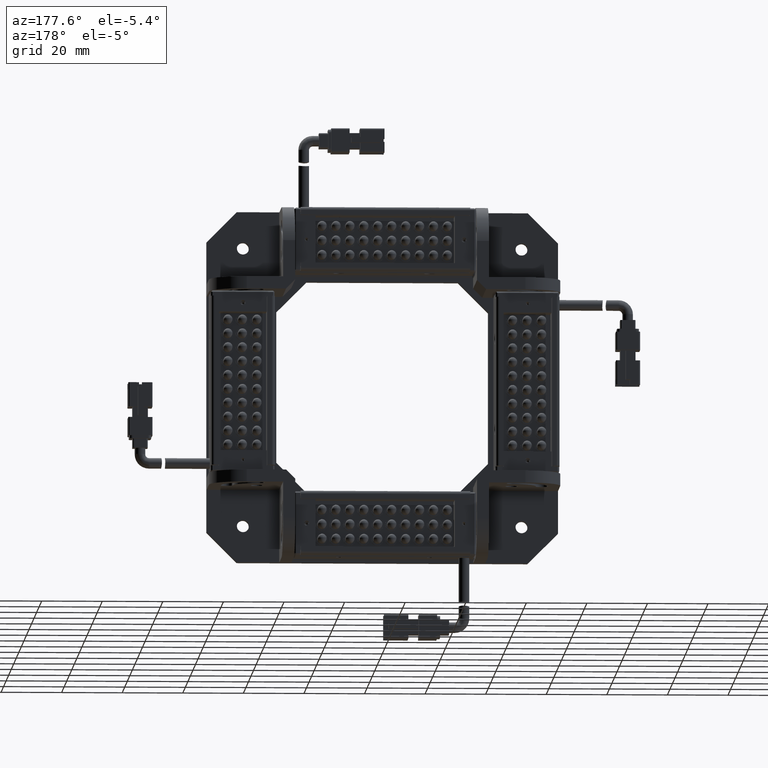
[diagram: clean part render]
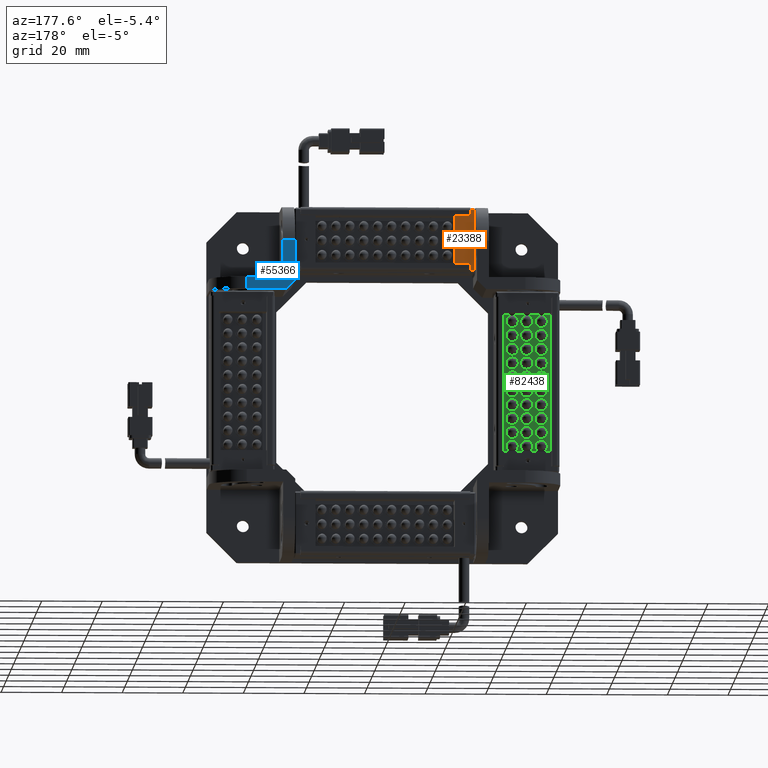
[diagram: same view with three faces highlighted in distinct colors, each labeled with its STEP entity id]
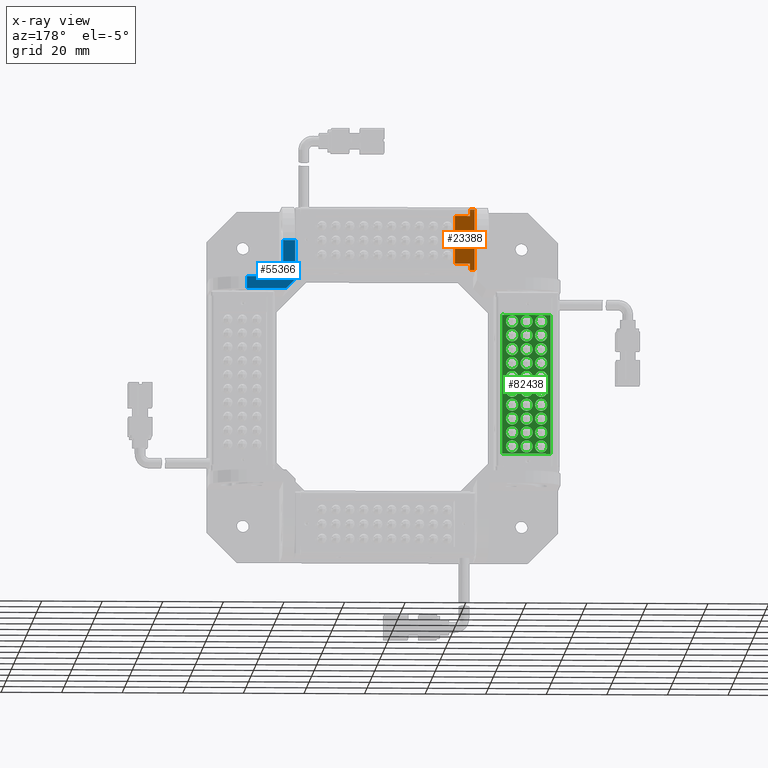
[diagram: x-ray of the same camera — body ghosted, the three highlighted faces saturated]
A machine part, auxiliary view with three faces highlighted in distinct colors.
The next image is the same camera in x-ray (body ghosted, the three faces saturated) — at least one of them is partly hidden behind the body in this view.
Their STEP definitions:

[orange] entity #23388 — the highlighted planar face has unit normal (-0, -1, -0).
#83 = CARTESIAN_POINT ( 'NONE',  ( -22.99999999999980500, 22.49999999999998200, 54.90000000000009800 ) ) ;
#1656 = EDGE_CURVE ( 'NONE', #50572, #61081, #29876, .T. ) ;
#2860 = DIRECTION ( 'NONE',  ( -1.665334536937765600E-016, -1.000000000000000000, -1.665334536937718000E-016 ) ) ;
#3181 = VERTEX_POINT ( 'NONE', #50595 ) ;
#3206 = AXIS2_PLACEMENT_3D ( 'NONE', #11047, #58519, #17892 ) ;
#4620 = VECTOR ( 'NONE', #83541, 1000.000000000000000 ) ;
#5079 = VECTOR ( 'NONE', #5892, 1000.000000000000000 ) ;
#5491 = LINE ( 'NONE', #40691, #57522 ) ;
#5892 = DIRECTION ( 'NONE',  ( 1.000000000000000000, -1.665334536937759700E-016, -3.491481338843133400E-015 ) ) ;
#6113 = CARTESIAN_POINT ( 'NONE',  ( -26.79999999999982700, 22.49999999999998600, 47.00000000000011400 ) ) ;
#6479 = CIRCLE ( 'NONE', #52557, 0.7999999999999986000 ) ;
#7579 = VERTEX_POINT ( 'NONE', #6113 ) ;
#7620 = LINE ( 'NONE', #87720, #43689 ) ;
#7853 = EDGE_CURVE ( 'NONE', #51904, #7579, #6479, .T. ) ;
#9663 = VECTOR ( 'NONE', #27386, 1000.000000000000000 ) ;
#10465 = CARTESIAN_POINT ( 'NONE',  ( -27.99999999999979700, 22.49999999999998200, 57.50000000000012100 ) ) ;
#11047 = CARTESIAN_POINT ( 'NONE',  ( -25.99999999999982900, 22.49999999999998600, 47.00000000000011400 ) ) ;
#11210 = VECTOR ( 'NONE', #24701, 1000.000000000000000 ) ;
#11688 = VERTEX_POINT ( 'NONE', #85234 ) ;
#16268 = PLANE ( 'NONE',  #49012 ) ;
#17892 = DIRECTION ( 'NONE',  ( 1.000000000000000000, 0.0000000000000000000, 0.0000000000000000000 ) ) ;
#21301 = CARTESIAN_POINT ( 'NONE',  ( -29.49999999999986100, 22.49999999999998900, 37.00000000000012800 ) ) ;
#21722 = ORIENTED_EDGE ( 'NONE', *, *, #27608, .F. ) ;
#23108 = LINE ( 'NONE', #66713, #5079 ) ;
#23388 = ADVANCED_FACE ( 'NONE', ( #43665, #59601 ), #16268, .F. ) ;
#24701 = DIRECTION ( 'NONE',  ( 3.491481338843133400E-015, -1.665334536937724000E-016, 1.000000000000000000 ) ) ;
#25575 = VERTEX_POINT ( 'NONE', #52819 ) ;
#26263 = CARTESIAN_POINT ( 'NONE',  ( -29.49999999999979400, 22.49999999999998200, 57.00000000000012800 ) ) ;
#27315 = VERTEX_POINT ( 'NONE', #21301 ) ;
#27370 = ORIENTED_EDGE ( 'NONE', *, *, #53428, .F. ) ;
#27386 = DIRECTION ( 'NONE',  ( -1.000000000000000000, 1.665334536937759700E-016, 3.491481338843133400E-015 ) ) ;
#27608 = EDGE_CURVE ( 'NONE', #27315, #76538, #80857, .T. ) ;
#29284 = LINE ( 'NONE', #44862, #11210 ) ;
#29432 = VECTOR ( 'NONE', #64769, 1000.000000000000000 ) ;
#29876 = LINE ( 'NONE', #83, #9663 ) ;
#30406 = CARTESIAN_POINT ( 'NONE',  ( -25.99999999999982900, 22.49999999999998600, 47.00000000000011400 ) ) ;
#31531 = LINE ( 'NONE', #10465, #29432 ) ;
#33904 = DIRECTION ( 'NONE',  ( -3.491481338843133400E-015, 1.665334536937724000E-016, -1.000000000000000000 ) ) ;
#37017 = ORIENTED_EDGE ( 'NONE', *, *, #7853, .F. ) ;
#37097 = EDGE_CURVE ( 'NONE', #11688, #50572, #29284, .T. ) ;
#37169 = DIRECTION ( 'NONE',  ( 1.000000000000000000, 0.0000000000000000000, 0.0000000000000000000 ) ) ;
#38566 = LINE ( 'NONE', #42966, #4620 ) ;
#39685 = ORIENTED_EDGE ( 'NONE', *, *, #1656, .F. ) ;
#40691 = CARTESIAN_POINT ( 'NONE',  ( -29.49999999999979000, 22.49999999999998200, 57.50000000000012800 ) ) ;
#42091 = EDGE_CURVE ( 'NONE', #3181, #76869, #7620, .T. ) ;
#42108 = EDGE_CURVE ( 'NONE', #76869, #27315, #5491, .T. ) ;
#42966 = CARTESIAN_POINT ( 'NONE',  ( -27.99999999999979700, 22.49999999999998200, 57.50000000000012100 ) ) ;
#43484 = CARTESIAN_POINT ( 'NONE',  ( -22.99999999999979400, 22.49999999999998200, 57.50000000000010700 ) ) ;
#43665 = FACE_OUTER_BOUND ( 'NONE', #78882, .T. ) ;
#43689 = VECTOR ( 'NONE', #47244, 1000.000000000000000 ) ;
#44186 = CARTESIAN_POINT ( 'NONE',  ( -22.99999999999980500, 22.49999999999998200, 54.90000000000009800 ) ) ;
#44862 = CARTESIAN_POINT ( 'NONE',  ( -22.99999999999979400, 22.49999999999998200, 57.50000000000010700 ) ) ;
#44988 = ORIENTED_EDGE ( 'NONE', *, *, #42091, .F. ) ;
#47244 = DIRECTION ( 'NONE',  ( -1.000000000000000000, 1.665334536937759700E-016, 3.491481338843133400E-015 ) ) ;
#47808 = EDGE_CURVE ( 'NONE', #25575, #11688, #23108, .T. ) ;
#48429 = ORIENTED_EDGE ( 'NONE', *, *, #37097, .F. ) ;
#49012 = AXIS2_PLACEMENT_3D ( 'NONE', #43484, #2860, #50371 ) ;
#50363 = ORIENTED_EDGE ( 'NONE', *, *, #83113, .F. ) ;
#50371 = DIRECTION ( 'NONE',  ( -1.000000000000000000, 1.665334536937759700E-016, 3.491481338843133400E-015 ) ) ;
#50572 = VERTEX_POINT ( 'NONE', #44186 ) ;
#50595 = CARTESIAN_POINT ( 'NONE',  ( -27.99999999999979700, 22.49999999999998600, 57.00000000000012100 ) ) ;
#51788 = CARTESIAN_POINT ( 'NONE',  ( -27.99999999999980100, 22.49999999999998600, 54.90000000000011900 ) ) ;
#51904 = VERTEX_POINT ( 'NONE', #80979 ) ;
#52193 = ORIENTED_EDGE ( 'NONE', *, *, #72643, .F. ) ;
#52557 = AXIS2_PLACEMENT_3D ( 'NONE', #30406, #77783, #37169 ) ;
#52819 = CARTESIAN_POINT ( 'NONE',  ( -27.99999999999985800, 22.49999999999998600, 39.10000000000012200 ) ) ;
#53275 = DIRECTION ( 'NONE',  ( 1.000000000000000000, -1.665334536937759700E-016, -3.491481338843133400E-015 ) ) ;
#53428 = EDGE_CURVE ( 'NONE', #7579, #51904, #57496, .T. ) ;
#57496 = CIRCLE ( 'NONE', #3206, 0.7999999999999986000 ) ;
#57522 = VECTOR ( 'NONE', #33904, 1000.000000000000000 ) ;
#57875 = ORIENTED_EDGE ( 'NONE', *, *, #47808, .F. ) ;
#58519 = DIRECTION ( 'NONE',  ( 1.665334536937765400E-016, 1.000000000000000000, 1.665334536937718000E-016 ) ) ;
#59601 = FACE_BOUND ( 'NONE', #78809, .T. ) ;
#61081 = VERTEX_POINT ( 'NONE', #51788 ) ;
#64769 = DIRECTION ( 'NONE',  ( 3.491481338843133400E-015, -1.665334536937724000E-016, 1.000000000000000000 ) ) ;
#64995 = VECTOR ( 'NONE', #53275, 1000.000000000000000 ) ;
#66713 = CARTESIAN_POINT ( 'NONE',  ( -22.99999999999986100, 22.49999999999998600, 39.10000000000010100 ) ) ;
#72643 = EDGE_CURVE ( 'NONE', #61081, #3181, #31531, .T. ) ;
#73991 = CARTESIAN_POINT ( 'NONE',  ( -22.99999999999986900, 22.49999999999998600, 37.00000000000010700 ) ) ;
#76538 = VERTEX_POINT ( 'NONE', #83480 ) ;
#76869 = VERTEX_POINT ( 'NONE', #26263 ) ;
#77783 = DIRECTION ( 'NONE',  ( 1.665334536937765400E-016, 1.000000000000000000, 1.665334536937718000E-016 ) ) ;
#78809 = EDGE_LOOP ( 'NONE', ( #37017, #27370 ) ) ;
#78882 = EDGE_LOOP ( 'NONE', ( #44988, #52193, #39685, #48429, #57875, #50363, #21722, #85560 ) ) ;
#80857 = LINE ( 'NONE', #73991, #64995 ) ;
#80979 = CARTESIAN_POINT ( 'NONE',  ( -25.19999999999982900, 22.49999999999998600, 47.00000000000011400 ) ) ;
#83113 = EDGE_CURVE ( 'NONE', #76538, #25575, #38566, .T. ) ;
#83480 = CARTESIAN_POINT ( 'NONE',  ( -27.99999999999986500, 22.49999999999998900, 37.00000000000012800 ) ) ;
#83541 = DIRECTION ( 'NONE',  ( 3.491481338843133400E-015, -1.665334536937724000E-016, 1.000000000000000000 ) ) ;
#85234 = CARTESIAN_POINT ( 'NONE',  ( -22.99999999999986100, 22.49999999999998600, 39.10000000000010100 ) ) ;
#85560 = ORIENTED_EDGE ( 'NONE', *, *, #42108, .F. ) ;
#87720 = CARTESIAN_POINT ( 'NONE',  ( -22.99999999999979700, 22.49999999999998200, 57.00000000000010700 ) ) ;

[blue] entity #55366 — the highlighted planar face has unit normal (-0, -1, 0).
#2674 = CARTESIAN_POINT ( 'NONE',  ( 30.00000000000032000, 29.99999999999998200, 45.99999999999973700 ) ) ;
#4879 = PLANE ( 'NONE',  #68187 ) ;
#5998 = EDGE_CURVE ( 'NONE', #20626, #34458, #14513, .T. ) ;
#7381 = LINE ( 'NONE', #57017, #43453 ) ;
#7944 = CARTESIAN_POINT ( 'NONE',  ( 34.00000000000025600, 29.99999999999998200, 33.99999999999970900 ) ) ;
#9115 = DIRECTION ( 'NONE',  ( -1.000000000000000000, 1.010611832113635500E-016, 4.994198925862109000E-015 ) ) ;
#11992 = CARTESIAN_POINT ( 'NONE',  ( 58.00000000000026300, 29.99999999999997900, 29.99999999999959100 ) ) ;
#12545 = ORIENTED_EDGE ( 'NONE', *, *, #5998, .F. ) ;
#14513 = LINE ( 'NONE', #32094, #70696 ) ;
#16335 = VERTEX_POINT ( 'NONE', #23132 ) ;
#16914 = ORIENTED_EDGE ( 'NONE', *, *, #26230, .F. ) ;
#18835 = DIRECTION ( 'NONE',  ( -4.994198925862109000E-015, -3.275591000619051700E-030, -1.000000000000000000 ) ) ;
#20626 = VERTEX_POINT ( 'NONE', #7944 ) ;
#22666 = CARTESIAN_POINT ( 'NONE',  ( 46.00000000000026300, 29.99999999999998200, 29.99999999999965200 ) ) ;
#22824 = VERTEX_POINT ( 'NONE', #42988 ) ;
#23132 = CARTESIAN_POINT ( 'NONE',  ( 46.00000000000028400, 29.99999999999998200, 33.99999999999965900 ) ) ;
#23247 = VECTOR ( 'NONE', #9115, 1000.000000000000000 ) ;
#24116 = CARTESIAN_POINT ( 'NONE',  ( 46.00000000000026300, 29.99999999999998200, 29.99999999999965200 ) ) ;
#25149 = CARTESIAN_POINT ( 'NONE',  ( 30.00000000000023800, 29.99999999999998200, 29.99999999999973000 ) ) ;
#26230 = EDGE_CURVE ( 'NONE', #47106, #16335, #62101, .T. ) ;
#30069 = EDGE_CURVE ( 'NONE', #16335, #20626, #69449, .T. ) ;
#30540 = ORIENTED_EDGE ( 'NONE', *, *, #86429, .F. ) ;
#31491 = CARTESIAN_POINT ( 'NONE',  ( 30.00000000000025200, 29.99999999999998200, 32.99999999999973000 ) ) ;
#32094 = CARTESIAN_POINT ( 'NONE',  ( 34.00000000000023400, 29.99999999999998200, 29.99999999999971200 ) ) ;
#33957 = VECTOR ( 'NONE', #82057, 1000.000000000000000 ) ;
#34458 = VERTEX_POINT ( 'NONE', #51719 ) ;
#34664 = CARTESIAN_POINT ( 'NONE',  ( 30.00000000000025200, 29.99999999999998200, 32.99999999999973000 ) ) ;
#42747 = EDGE_CURVE ( 'NONE', #22824, #64065, #85809, .T. ) ;
#42938 = CARTESIAN_POINT ( 'NONE',  ( 30.00000000000023800, 29.99999999999998200, 29.99999999999973000 ) ) ;
#42988 = CARTESIAN_POINT ( 'NONE',  ( 33.00000000000024900, 29.99999999999998200, 29.99999999999971900 ) ) ;
#43453 = VECTOR ( 'NONE', #77398, 1000.000000000000000 ) ;
#43943 = VERTEX_POINT ( 'NONE', #2674 ) ;
#47106 = VERTEX_POINT ( 'NONE', #24116 ) ;
#49154 = ORIENTED_EDGE ( 'NONE', *, *, #72015, .T. ) ;
#51719 = CARTESIAN_POINT ( 'NONE',  ( 34.00000000000031300, 29.99999999999998200, 45.99999999999970900 ) ) ;
#52478 = DIRECTION ( 'NONE',  ( -4.994198925862109000E-015, -3.275591000619051700E-030, -1.000000000000000000 ) ) ;
#54674 = LINE ( 'NONE', #25149, #86345 ) ;
#55366 = ADVANCED_FACE ( 'NONE', ( #59671 ), #4879, .F. ) ;
#57017 = CARTESIAN_POINT ( 'NONE',  ( 58.00000000000034100, 29.99999999999997900, 45.99999999999959500 ) ) ;
#59447 = DIRECTION ( 'NONE',  ( -1.010611832113635500E-016, -1.000000000000000000, 3.780310653259597200E-030 ) ) ;
#59671 = FACE_OUTER_BOUND ( 'NONE', #77544, .T. ) ;
#61212 = ORIENTED_EDGE ( 'NONE', *, *, #69959, .F. ) ;
#61849 = CARTESIAN_POINT ( 'NONE',  ( 58.00000000000028400, 29.99999999999997900, 33.99999999999959500 ) ) ;
#62101 = LINE ( 'NONE', #22666, #77963 ) ;
#64065 = VERTEX_POINT ( 'NONE', #31491 ) ;
#67315 = VECTOR ( 'NONE', #81657, 1000.000000000000000 ) ;
#68187 = AXIS2_PLACEMENT_3D ( 'NONE', #11992, #59447, #18835 ) ;
#69449 = LINE ( 'NONE', #61849, #67315 ) ;
#69959 = EDGE_CURVE ( 'NONE', #43943, #64065, #54674, .T. ) ;
#70696 = VECTOR ( 'NONE', #79481, 1000.000000000000000 ) ;
#72015 = EDGE_CURVE ( 'NONE', #47106, #22824, #77335, .T. ) ;
#73041 = ORIENTED_EDGE ( 'NONE', *, *, #30069, .F. ) ;
#76899 = DIRECTION ( 'NONE',  ( 4.994198925862109000E-015, 3.275591000619051700E-030, 1.000000000000000000 ) ) ;
#77335 = LINE ( 'NONE', #42938, #23247 ) ;
#77398 = DIRECTION ( 'NONE',  ( -1.000000000000000000, 1.010611832113635500E-016, 4.994198925862109000E-015 ) ) ;
#77544 = EDGE_LOOP ( 'NONE', ( #87131, #61212, #30540, #12545, #73041, #16914, #49154 ) ) ;
#77963 = VECTOR ( 'NONE', #76899, 1000.000000000000000 ) ;
#79481 = DIRECTION ( 'NONE',  ( 4.994198925862109000E-015, 3.275591000619051700E-030, 1.000000000000000000 ) ) ;
#81657 = DIRECTION ( 'NONE',  ( -1.000000000000000000, 1.010611832113635500E-016, 4.994198925862109000E-015 ) ) ;
#82057 = DIRECTION ( 'NONE',  ( -0.7071067811865458000, 7.146104796349373600E-017, 0.7071067811865492400 ) ) ;
#85809 = LINE ( 'NONE', #34664, #33957 ) ;
#86345 = VECTOR ( 'NONE', #52478, 1000.000000000000000 ) ;
#86429 = EDGE_CURVE ( 'NONE', #34458, #43943, #7381, .T. ) ;
#87131 = ORIENTED_EDGE ( 'NONE', *, *, #42747, .T. ) ;

[green] entity #82438 — the highlighted planar face has unit normal (-0, 1, -0).
#35 = EDGE_CURVE ( 'NONE', #16670, #2134, #23381, .T. ) ;
#130 = VERTEX_POINT ( 'NONE', #28620 ) ;
#366 = AXIS2_PLACEMENT_3D ( 'NONE', #65304, #24680, #72082 ) ;
#454 = AXIS2_PLACEMENT_3D ( 'NONE', #73508, #32933, #80319 ) ;
#858 = CIRCLE ( 'NONE', #55384, 2.000000000000001800 ) ;
#864 = EDGE_LOOP ( 'NONE', ( #62507, #12887 ) ) ;
#901 = CARTESIAN_POINT ( 'NONE',  ( -47.00000000000004300, 15.49999999999999500, 11.49999999999998900 ) ) ;
#1006 = EDGE_CURVE ( 'NONE', #54600, #31907, #858, .T. ) ;
#1136 = VERTEX_POINT ( 'NONE', #7108 ) ;
#1265 = CIRCLE ( 'NONE', #32957, 2.000000000000001800 ) ;
#1559 = EDGE_CURVE ( 'NONE', #52166, #79749, #12911, .T. ) ;
#1615 = DIRECTION ( 'NONE',  ( 5.175035765690092300E-032, -1.000000000000000000, 1.475878642325520700E-016 ) ) ;
#1712 = VERTEX_POINT ( 'NONE', #61788 ) ;
#1777 = CARTESIAN_POINT ( 'NONE',  ( -42.20000000000003100, 15.49999999999999100, -4.900000000000005700 ) ) ;
#1819 = VERTEX_POINT ( 'NONE', #42456 ) ;
#1846 = CARTESIAN_POINT ( 'NONE',  ( -42.20000000000003100, 15.49999999999999100, -6.900000000000007500 ) ) ;
#2070 = VERTEX_POINT ( 'NONE', #18424 ) ;
#2134 = VERTEX_POINT ( 'NONE', #86779 ) ;
#2175 = VERTEX_POINT ( 'NONE', #19879 ) ;
#2534 = AXIS2_PLACEMENT_3D ( 'NONE', #34400, #81778, #41190 ) ;
#2556 = VERTEX_POINT ( 'NONE', #70221 ) ;
#2991 = EDGE_LOOP ( 'NONE', ( #75087, #27109 ) ) ;
#2994 = DIRECTION ( 'NONE',  ( 0.0000000000000000000, 0.0000000000000000000, 1.000000000000000000 ) ) ;
#2997 = DIRECTION ( 'NONE',  ( 5.175035765690092300E-032, -1.000000000000000000, 1.475878642325520700E-016 ) ) ;
#3013 = VERTEX_POINT ( 'NONE', #48541 ) ;
#3189 = ORIENTED_EDGE ( 'NONE', *, *, #81581, .T. ) ;
#3502 = VERTEX_POINT ( 'NONE', #40987 ) ;
#3581 = DIRECTION ( 'NONE',  ( 0.0000000000000000000, 0.0000000000000000000, 1.000000000000000000 ) ) ;
#4515 = DIRECTION ( 'NONE',  ( 5.175035765690092300E-032, -1.000000000000000000, 1.475878642325520700E-016 ) ) ;
#4759 = CARTESIAN_POINT ( 'NONE',  ( -42.20000000000003800, 15.49999999999999300, 2.299999999999993200 ) ) ;
#4919 = DIRECTION ( 'NONE',  ( 0.0000000000000000000, 0.0000000000000000000, 1.000000000000000000 ) ) ;
#5008 = DIRECTION ( 'NONE',  ( 0.0000000000000000000, 0.0000000000000000000, 1.000000000000000000 ) ) ;
#5051 = ORIENTED_EDGE ( 'NONE', *, *, #52984, .T. ) ;
#5203 = DIRECTION ( 'NONE',  ( 5.175035765690092300E-032, -1.000000000000000000, 1.475878642325520700E-016 ) ) ;
#5368 = VERTEX_POINT ( 'NONE', #86322 ) ;
#5769 = CIRCLE ( 'NONE', #23867, 2.000000000000001800 ) ;
#5784 = AXIS2_PLACEMENT_3D ( 'NONE', #31460, #78864, #38255 ) ;
#5897 = FACE_BOUND ( 'NONE', #43162, .T. ) ;
#6070 = AXIS2_PLACEMENT_3D ( 'NONE', #33271, #80653, #40062 ) ;
#6602 = DIRECTION ( 'NONE',  ( 0.0000000000000000000, 0.0000000000000000000, 1.000000000000000000 ) ) ;
#6870 = AXIS2_PLACEMENT_3D ( 'NONE', #51560, #10897, #58377 ) ;
#6877 = CARTESIAN_POINT ( 'NONE',  ( -47.00000000000002800, 15.49999999999999100, -6.900000000000011000 ) ) ;
#6981 = CARTESIAN_POINT ( 'NONE',  ( -42.20000000000004500, 15.49999999999999500, 4.899999999999991500 ) ) ;
#7085 = AXIS2_PLACEMENT_3D ( 'NONE', #45142, #4515, #52010 ) ;
#7108 = CARTESIAN_POINT ( 'NONE',  ( -51.80000000000002600, 15.49999999999999100, -13.50000000000001600 ) ) ;
#7157 = EDGE_LOOP ( 'NONE', ( #13038, #30806 ) ) ;
#7268 = CARTESIAN_POINT ( 'NONE',  ( -51.80000000000004000, 15.49999999999999500, 6.899999999999986100 ) ) ;
#7450 = EDGE_CURVE ( 'NONE', #55485, #39460, #71402, .T. ) ;
#7678 = VERTEX_POINT ( 'NONE', #6981 ) ;
#7699 = ORIENTED_EDGE ( 'NONE', *, *, #26088, .T. ) ;
#7705 = DIRECTION ( 'NONE',  ( 0.0000000000000000000, 0.0000000000000000000, 1.000000000000000000 ) ) ;
#7743 = AXIS2_PLACEMENT_3D ( 'NONE', #39264, #86580, #46076 ) ;
#7898 = DIRECTION ( 'NONE',  ( 5.175035765690092300E-032, -1.000000000000000000, 1.475878642325520700E-016 ) ) ;
#7918 = CARTESIAN_POINT ( 'NONE',  ( -42.20000000000003800, 15.49999999999999300, -0.3000000000000051500 ) ) ;
#7956 = ORIENTED_EDGE ( 'NONE', *, *, #59988, .T. ) ;
#8017 = FACE_BOUND ( 'NONE', #20988, .T. ) ;
#8207 = ORIENTED_EDGE ( 'NONE', *, *, #18146, .T. ) ;
#8244 = DIRECTION ( 'NONE',  ( 5.175035765690092300E-032, -1.000000000000000000, 1.475878642325520700E-016 ) ) ;
#8657 = DIRECTION ( 'NONE',  ( 0.0000000000000000000, 0.0000000000000000000, 1.000000000000000000 ) ) ;
#8810 = AXIS2_PLACEMENT_3D ( 'NONE', #79729, #39159, #86480 ) ;
#8890 = EDGE_CURVE ( 'NONE', #33095, #69326, #47894, .T. ) ;
#8946 = ORIENTED_EDGE ( 'NONE', *, *, #35, .T. ) ;
#9653 = CARTESIAN_POINT ( 'NONE',  ( -42.20000000000003800, 15.49999999999999300, -4.300000000000008700 ) ) ;
#9861 = CIRCLE ( 'NONE', #58428, 2.000000000000001800 ) ;
#10028 = CIRCLE ( 'NONE', #81913, 2.000000000000001800 ) ;
#10137 = FACE_BOUND ( 'NONE', #29585, .T. ) ;
#10208 = CARTESIAN_POINT ( 'NONE',  ( -51.80000000000003300, 15.49999999999999300, -2.300000000000014500 ) ) ;
#10233 = ORIENTED_EDGE ( 'NONE', *, *, #70039, .T. ) ;
#10348 = CARTESIAN_POINT ( 'NONE',  ( -47.00000000000002800, 15.49999999999999100, -9.500000000000008900 ) ) ;
#10354 = DIRECTION ( 'NONE',  ( 5.175035765690092300E-032, -1.000000000000000000, 1.475878642325520700E-016 ) ) ;
#10763 = VERTEX_POINT ( 'NONE', #37767 ) ;
#10897 = DIRECTION ( 'NONE',  ( 5.175035765690092300E-032, -1.000000000000000000, 1.475878642325520700E-016 ) ) ;
#10948 = EDGE_CURVE ( 'NONE', #40723, #72700, #19558, .T. ) ;
#11117 = AXIS2_PLACEMENT_3D ( 'NONE', #15832, #63247, #22609 ) ;
#11127 = AXIS2_PLACEMENT_3D ( 'NONE', #4759, #52256, #11590 ) ;
#11351 = EDGE_CURVE ( 'NONE', #46002, #1712, #86024, .T. ) ;
#11590 = DIRECTION ( 'NONE',  ( 0.0000000000000000000, 0.0000000000000000000, 1.000000000000000000 ) ) ;
#11592 = EDGE_LOOP ( 'NONE', ( #64614, #5051, #65419, #31993 ) ) ;
#12140 = CARTESIAN_POINT ( 'NONE',  ( -42.20000000000005300, 15.49999999999999600, 20.69999999999999200 ) ) ;
#12275 = FACE_BOUND ( 'NONE', #44334, .T. ) ;
#12442 = CARTESIAN_POINT ( 'NONE',  ( -51.80000000000004700, 15.49999999999999500, 18.09999999999998700 ) ) ;
#12887 = ORIENTED_EDGE ( 'NONE', *, *, #34123, .T. ) ;
#12911 = CIRCLE ( 'NONE', #48650, 2.000000000000001800 ) ;
#13038 = ORIENTED_EDGE ( 'NONE', *, *, #66099, .T. ) ;
#13099 = AXIS2_PLACEMENT_3D ( 'NONE', #901, #48384, #7705 ) ;
#13155 = CIRCLE ( 'NONE', #7085, 2.000000000000001800 ) ;
#13474 = CARTESIAN_POINT ( 'NONE',  ( -46.90000000000004100, 15.49999999999999300, -0.1499999999999973600 ) ) ;
#13533 = CIRCLE ( 'NONE', #6070, 2.000000000000001800 ) ;
#13741 = DIRECTION ( 'NONE',  ( 0.0000000000000000000, 0.0000000000000000000, 1.000000000000000000 ) ) ;
#13757 = DIRECTION ( 'NONE',  ( 5.175035765690092300E-032, -1.000000000000000000, 1.475878642325520700E-016 ) ) ;
#13921 = CARTESIAN_POINT ( 'NONE',  ( -42.20000000000005300, 15.49999999999999500, 14.09999999999999100 ) ) ;
#14131 = DIRECTION ( 'NONE',  ( 0.0000000000000000000, 0.0000000000000000000, 1.000000000000000000 ) ) ;
#14456 = FACE_BOUND ( 'NONE', #56113, .T. ) ;
#14632 = EDGE_LOOP ( 'NONE', ( #7699, #26324 ) ) ;
#14664 = ORIENTED_EDGE ( 'NONE', *, *, #81651, .T. ) ;
#14987 = DIRECTION ( 'NONE',  ( 5.175035765690092300E-032, -1.000000000000000000, 1.475878642325520700E-016 ) ) ;
#15279 = CARTESIAN_POINT ( 'NONE',  ( -47.00000000000002800, 15.49999999999999100, -11.50000000000001100 ) ) ;
#15636 = EDGE_LOOP ( 'NONE', ( #82629, #77612 ) ) ;
#15774 = CIRCLE ( 'NONE', #43449, 2.000000000000001800 ) ;
#15832 = CARTESIAN_POINT ( 'NONE',  ( -42.20000000000003800, 15.49999999999999300, 2.299999999999993200 ) ) ;
#15861 = CIRCLE ( 'NONE', #57288, 2.000000000000001800 ) ;
#15957 = CARTESIAN_POINT ( 'NONE',  ( -47.00000000000005000, 15.49999999999999600, 18.69999999999998900 ) ) ;
#16566 = EDGE_LOOP ( 'NONE', ( #36947, #80811 ) ) ;
#16583 = FACE_BOUND ( 'NONE', #86792, .T. ) ;
#16670 = VERTEX_POINT ( 'NONE', #65551 ) ;
#16836 = EDGE_LOOP ( 'NONE', ( #74334, #75532 ) ) ;
#16951 = VERTEX_POINT ( 'NONE', #13921 ) ;
#17059 = CARTESIAN_POINT ( 'NONE',  ( -42.20000000000005300, 15.49999999999999600, 22.69999999999999600 ) ) ;
#17085 = DIRECTION ( 'NONE',  ( 0.0000000000000000000, 0.0000000000000000000, 1.000000000000000000 ) ) ;
#17661 = DIRECTION ( 'NONE',  ( 5.175035765690092300E-032, -1.000000000000000000, 1.475878642325520700E-016 ) ) ;
#17868 = VERTEX_POINT ( 'NONE', #80710 ) ;
#17897 = DIRECTION ( 'NONE',  ( 5.175035765690092300E-032, -1.000000000000000000, 1.475878642325520700E-016 ) ) ;
#17908 = EDGE_LOOP ( 'NONE', ( #64633, #35024 ) ) ;
#18008 = VERTEX_POINT ( 'NONE', #28289 ) ;
#18105 = CARTESIAN_POINT ( 'NONE',  ( -42.20000000000003800, 15.49999999999999300, 0.2999999999999912700 ) ) ;
#18146 = EDGE_CURVE ( 'NONE', #3013, #1136, #64911, .T. ) ;
#18424 = CARTESIAN_POINT ( 'NONE',  ( -42.20000000000005300, 15.49999999999999500, 18.09999999999999400 ) ) ;
#18519 = CIRCLE ( 'NONE', #53795, 2.000000000000001800 ) ;
#18676 = CIRCLE ( 'NONE', #8810, 2.000000000000001800 ) ;
#18716 = CARTESIAN_POINT ( 'NONE',  ( -42.20000000000002400, 15.49999999999999100, -16.10000000000000500 ) ) ;
#18762 = EDGE_CURVE ( 'NONE', #79749, #52166, #68929, .T. ) ;
#18953 = VERTEX_POINT ( 'NONE', #34428 ) ;
#18965 = ORIENTED_EDGE ( 'NONE', *, *, #8890, .T. ) ;
#18990 = DIRECTION ( 'NONE',  ( 0.0000000000000000000, 0.0000000000000000000, 1.000000000000000000 ) ) ;
#19009 = CIRCLE ( 'NONE', #61698, 2.000000000000001800 ) ;
#19503 = VECTOR ( 'NONE', #42906, 1000.000000000000000 ) ;
#19529 = DIRECTION ( 'NONE',  ( 5.175035765690092300E-032, -1.000000000000000000, 1.475878642325520700E-016 ) ) ;
#19558 = CIRCLE ( 'NONE', #38129, 2.000000000000001800 ) ;
#19879 = CARTESIAN_POINT ( 'NONE',  ( -42.20000000000002400, 15.49999999999999100, -14.10000000000000500 ) ) ;
#19914 = CIRCLE ( 'NONE', #51916, 2.000000000000001800 ) ;
#19954 = CIRCLE ( 'NONE', #58736, 2.000000000000001800 ) ;
#20158 = ORIENTED_EDGE ( 'NONE', *, *, #38480, .T. ) ;
#20506 = CARTESIAN_POINT ( 'NONE',  ( -51.80000000000002600, 15.49999999999999100, -11.50000000000001400 ) ) ;
#20988 = EDGE_LOOP ( 'NONE', ( #18965, #50868 ) ) ;
#21031 = AXIS2_PLACEMENT_3D ( 'NONE', #37444, #84847, #44281 ) ;
#21241 = EDGE_CURVE ( 'NONE', #42319, #36405, #47436, .T. ) ;
#21256 = CARTESIAN_POINT ( 'NONE',  ( -47.00000000000005000, 15.49999999999999500, 14.09999999999998700 ) ) ;
#21265 = DIRECTION ( 'NONE',  ( 0.0000000000000000000, 0.0000000000000000000, 1.000000000000000000 ) ) ;
#21549 = DIRECTION ( 'NONE',  ( 5.175035765690092300E-032, -1.000000000000000000, 1.475878642325520700E-016 ) ) ;
#22057 = DIRECTION ( 'NONE',  ( 0.0000000000000000000, 0.0000000000000000000, 1.000000000000000000 ) ) ;
#22446 = CIRCLE ( 'NONE', #57158, 2.000000000000001800 ) ;
#22609 = DIRECTION ( 'NONE',  ( 0.0000000000000000000, 0.0000000000000000000, 1.000000000000000000 ) ) ;
#22627 = EDGE_CURVE ( 'NONE', #1136, #3013, #35253, .T. ) ;
#22780 = VERTEX_POINT ( 'NONE', #1777 ) ;
#23261 = EDGE_CURVE ( 'NONE', #16951, #2070, #60737, .T. ) ;
#23381 = CIRCLE ( 'NONE', #71712, 2.000000000000002200 ) ;
#23618 = ORIENTED_EDGE ( 'NONE', *, *, #82500, .T. ) ;
#23746 = DIRECTION ( 'NONE',  ( 5.175035765690092300E-032, -1.000000000000000000, 1.475878642325520700E-016 ) ) ;
#23850 = CARTESIAN_POINT ( 'NONE',  ( -51.80000000000004000, 15.49999999999999300, 2.299999999999985600 ) ) ;
#23867 = AXIS2_PLACEMENT_3D ( 'NONE', #72435, #31857, #79248 ) ;
#23937 = FACE_BOUND ( 'NONE', #51726, .T. ) ;
#24029 = DIRECTION ( 'NONE',  ( 5.175035765690092300E-032, -1.000000000000000000, 1.475878642325520700E-016 ) ) ;
#24219 = DIRECTION ( 'NONE',  ( 5.175035765690092300E-032, -1.000000000000000000, 1.475878642325520700E-016 ) ) ;
#24273 = EDGE_LOOP ( 'NONE', ( #77086, #31394 ) ) ;
#24680 = DIRECTION ( 'NONE',  ( 5.175035765690092300E-032, -1.000000000000000000, 1.475878642325520700E-016 ) ) ;
#25028 = EDGE_LOOP ( 'NONE', ( #80695, #38504 ) ) ;
#25078 = ORIENTED_EDGE ( 'NONE', *, *, #26430, .T. ) ;
#25256 = AXIS2_PLACEMENT_3D ( 'NONE', #42229, #1615, #49113 ) ;
#25507 = DIRECTION ( 'NONE',  ( 0.0000000000000000000, 0.0000000000000000000, 1.000000000000000000 ) ) ;
#25528 = EDGE_CURVE ( 'NONE', #2070, #16951, #18676, .T. ) ;
#25530 = CARTESIAN_POINT ( 'NONE',  ( -47.00000000000004300, 15.49999999999999500, 6.899999999999989700 ) ) ;
#25664 = VERTEX_POINT ( 'NONE', #34107 ) ;
#25751 = AXIS2_PLACEMENT_3D ( 'NONE', #51049, #10354, #57855 ) ;
#25919 = ORIENTED_EDGE ( 'NONE', *, *, #57207, .T. ) ;
#25941 = CARTESIAN_POINT ( 'NONE',  ( -47.00000000000005000, 15.49999999999999500, 16.09999999999999100 ) ) ;
#25957 = AXIS2_PLACEMENT_3D ( 'NONE', #34278, #81660, #41058 ) ;
#26079 = FACE_BOUND ( 'NONE', #85604, .T. ) ;
#26088 = EDGE_CURVE ( 'NONE', #37626, #68240, #18519, .T. ) ;
#26324 = ORIENTED_EDGE ( 'NONE', *, *, #66413, .T. ) ;
#26339 = EDGE_LOOP ( 'NONE', ( #33145, #25078 ) ) ;
#26430 = EDGE_CURVE ( 'NONE', #5368, #44742, #31301, .T. ) ;
#27109 = ORIENTED_EDGE ( 'NONE', *, *, #21241, .T. ) ;
#27113 = DIRECTION ( 'NONE',  ( -7.625987304477668600E-016, 1.475878642325520700E-016, 1.000000000000000000 ) ) ;
#27338 = DIRECTION ( 'NONE',  ( 0.0000000000000000000, 0.0000000000000000000, 1.000000000000000000 ) ) ;
#27530 = EDGE_LOOP ( 'NONE', ( #77772, #33282 ) ) ;
#27780 = CIRCLE ( 'NONE', #65713, 2.000000000000001800 ) ;
#27889 = AXIS2_PLACEMENT_3D ( 'NONE', #13474, #67746, #27113 ) ;
#27925 = DIRECTION ( 'NONE',  ( 0.0000000000000000000, 0.0000000000000000000, 1.000000000000000000 ) ) ;
#28217 = DIRECTION ( 'NONE',  ( 5.175035765690092300E-032, -1.000000000000000000, 1.475878642325520700E-016 ) ) ;
#28234 = FACE_BOUND ( 'NONE', #74125, .T. ) ;
#28289 = CARTESIAN_POINT ( 'NONE',  ( -42.20000000000002400, 15.49999999999999100, -18.10000000000000900 ) ) ;
#28442 = CARTESIAN_POINT ( 'NONE',  ( -51.80000000000005400, 15.49999999999999600, 20.69999999999998500 ) ) ;
#28452 = CARTESIAN_POINT ( 'NONE',  ( -42.20000000000005300, 15.49999999999999500, 16.09999999999999400 ) ) ;
#28512 = CARTESIAN_POINT ( 'NONE',  ( -42.20000000000004500, 15.49999999999999500, 11.49999999999999300 ) ) ;
#28520 = CARTESIAN_POINT ( 'NONE',  ( -47.00000000000002100, 15.49999999999999100, -18.10000000000001200 ) ) ;
#28620 = CARTESIAN_POINT ( 'NONE',  ( -47.00000000000003600, 15.49999999999999300, 0.2999999999999877800 ) ) ;
#28650 = EDGE_CURVE ( 'NONE', #49332, #130, #41261, .T. ) ;
#28792 = CARTESIAN_POINT ( 'NONE',  ( -51.80000000000004000, 15.49999999999999500, 4.899999999999984400 ) ) ;
#29086 = VERTEX_POINT ( 'NONE', #71156 ) ;
#29099 = VERTEX_POINT ( 'NONE', #64384 ) ;
#29100 = EDGE_CURVE ( 'NONE', #40127, #7678, #49641, .T. ) ;
#29188 = VERTEX_POINT ( 'NONE', #18105 ) ;
#29198 = CIRCLE ( 'NONE', #70993, 2.000000000000001800 ) ;
#29294 = DIRECTION ( 'NONE',  ( 5.175035765690092300E-032, -1.000000000000000000, 1.475878642325520700E-016 ) ) ;
#29447 = CARTESIAN_POINT ( 'NONE',  ( -47.00000000000002100, 15.49999999999998900, -18.70000000000001000 ) ) ;
#29573 = EDGE_LOOP ( 'NONE', ( #3189, #51038 ) ) ;
#29585 = EDGE_LOOP ( 'NONE', ( #46780, #75674 ) ) ;
#30354 = FACE_BOUND ( 'NONE', #82516, .T. ) ;
#30806 = ORIENTED_EDGE ( 'NONE', *, *, #33292, .T. ) ;
#31010 = CARTESIAN_POINT ( 'NONE',  ( -47.00000000000005000, 15.49999999999999500, 18.09999999999999100 ) ) ;
#31144 = CARTESIAN_POINT ( 'NONE',  ( -51.80000000000004000, 15.49999999999999500, 8.899999999999987900 ) ) ;
#31198 = CARTESIAN_POINT ( 'NONE',  ( -42.20000000000002400, 15.49999999999999100, -16.10000000000000500 ) ) ;
#31301 = CIRCLE ( 'NONE', #59491, 2.000000000000001800 ) ;
#31394 = ORIENTED_EDGE ( 'NONE', *, *, #43598, .T. ) ;
#31460 = CARTESIAN_POINT ( 'NONE',  ( -47.00000000000003600, 15.49999999999999300, -2.300000000000010500 ) ) ;
#31542 = CARTESIAN_POINT ( 'NONE',  ( -51.80000000000002600, 15.49999999999999100, -16.10000000000001200 ) ) ;
#31742 = CARTESIAN_POINT ( 'NONE',  ( -42.20000000000003100, 15.49999999999999100, -11.50000000000000700 ) ) ;
#31857 = DIRECTION ( 'NONE',  ( 5.175035765690092300E-032, -1.000000000000000000, 1.475878642325520700E-016 ) ) ;
#31907 = VERTEX_POINT ( 'NONE', #79346 ) ;
#31927 = CARTESIAN_POINT ( 'NONE',  ( -51.80000000000003300, 15.49999999999999100, -6.900000000000014600 ) ) ;
#31993 = ORIENTED_EDGE ( 'NONE', *, *, #49323, .T. ) ;
#32166 = CARTESIAN_POINT ( 'NONE',  ( -47.00000000000003600, 15.49999999999999300, -0.3000000000000085900 ) ) ;
#32355 = DIRECTION ( 'NONE',  ( 0.0000000000000000000, 0.0000000000000000000, 1.000000000000000000 ) ) ;
#32458 = FACE_BOUND ( 'NONE', #24273, .T. ) ;
#32535 = EDGE_CURVE ( 'NONE', #130, #49332, #63037, .T. ) ;
#32577 = AXIS2_PLACEMENT_3D ( 'NONE', #31742, #79131, #38526 ) ;
#32684 = AXIS2_PLACEMENT_3D ( 'NONE', #31542, #78941, #38333 ) ;
#32759 = DIRECTION ( 'NONE',  ( 0.0000000000000000000, 0.0000000000000000000, 1.000000000000000000 ) ) ;
#32838 = AXIS2_PLACEMENT_3D ( 'NONE', #40000, #87347, #46846 ) ;
#32933 = DIRECTION ( 'NONE',  ( 5.175035765690092300E-032, -1.000000000000000000, 1.475878642325520700E-016 ) ) ;
#32957 = AXIS2_PLACEMENT_3D ( 'NONE', #35416, #82805, #42205 ) ;
#33023 = DIRECTION ( 'NONE',  ( 5.175035765690092300E-032, -1.000000000000000000, 1.475878642325520700E-016 ) ) ;
#33080 = CIRCLE ( 'NONE', #76821, 2.000000000000001800 ) ;
#33095 = VERTEX_POINT ( 'NONE', #12442 ) ;
#33145 = ORIENTED_EDGE ( 'NONE', *, *, #33232, .T. ) ;
#33232 = EDGE_CURVE ( 'NONE', #44742, #5368, #73377, .T. ) ;
#33271 = CARTESIAN_POINT ( 'NONE',  ( -51.80000000000005400, 15.49999999999999600, 20.69999999999998500 ) ) ;
#33282 = ORIENTED_EDGE ( 'NONE', *, *, #72610, .T. ) ;
#33292 = EDGE_CURVE ( 'NONE', #3502, #77188, #22446, .T. ) ;
#33633 = DIRECTION ( 'NONE',  ( 5.175035765690092300E-032, -1.000000000000000000, 1.475878642325520700E-016 ) ) ;
#33863 = EDGE_CURVE ( 'NONE', #22780, #43846, #27780, .T. ) ;
#34107 = CARTESIAN_POINT ( 'NONE',  ( -42.20000000000002400, 15.49999999999998900, -18.70000000000000600 ) ) ;
#34123 = EDGE_CURVE ( 'NONE', #29086, #25664, #41438, .T. ) ;
#34260 = CARTESIAN_POINT ( 'NONE',  ( -47.00000000000005000, 15.49999999999999600, 20.69999999999998900 ) ) ;
#34278 = CARTESIAN_POINT ( 'NONE',  ( -42.20000000000002400, 15.49999999999998900, -20.70000000000000600 ) ) ;
#34330 = CIRCLE ( 'NONE', #80580, 2.000000000000001800 ) ;
#34400 = CARTESIAN_POINT ( 'NONE',  ( -47.00000000000002100, 15.49999999999998900, -20.70000000000001000 ) ) ;
#34428 = CARTESIAN_POINT ( 'NONE',  ( -47.00000000000004300, 15.49999999999999500, 8.899999999999991500 ) ) ;
#34543 = EDGE_CURVE ( 'NONE', #87739, #81963, #48676, .T. ) ;
#34612 = FACE_BOUND ( 'NONE', #71640, .T. ) ;
#34896 = CARTESIAN_POINT ( 'NONE',  ( -47.00000000000005000, 15.49999999999999600, 22.69999999999999200 ) ) ;
#35024 = ORIENTED_EDGE ( 'NONE', *, *, #42507, .T. ) ;
#35228 = DIRECTION ( 'NONE',  ( 0.0000000000000000000, 0.0000000000000000000, 1.000000000000000000 ) ) ;
#35236 = DIRECTION ( 'NONE',  ( 0.0000000000000000000, 0.0000000000000000000, 1.000000000000000000 ) ) ;
#35253 = CIRCLE ( 'NONE', #59660, 2.000000000000001800 ) ;
#35395 = EDGE_CURVE ( 'NONE', #51562, #59543, #41999, .T. ) ;
#35416 = CARTESIAN_POINT ( 'NONE',  ( -47.00000000000002100, 15.49999999999999100, -16.10000000000000900 ) ) ;
#35835 = AXIS2_PLACEMENT_3D ( 'NONE', #25941, #73346, #32759 ) ;
#36052 = DIRECTION ( 'NONE',  ( 5.175035765690092300E-032, -1.000000000000000000, 1.475878642325520700E-016 ) ) ;
#36096 = CARTESIAN_POINT ( 'NONE',  ( -54.90000000000005500, 15.49999999999999600, 22.84999999999998000 ) ) ;
#36405 = VERTEX_POINT ( 'NONE', #10348 ) ;
#36947 = ORIENTED_EDGE ( 'NONE', *, *, #10948, .T. ) ;
#37444 = CARTESIAN_POINT ( 'NONE',  ( -42.20000000000004500, 15.49999999999999500, 6.899999999999993200 ) ) ;
#37626 = VERTEX_POINT ( 'NONE', #31144 ) ;
#37767 = CARTESIAN_POINT ( 'NONE',  ( -54.90000000000002000, 15.49999999999998900, -23.15000000000001600 ) ) ;
#37978 = DIRECTION ( 'NONE',  ( 0.0000000000000000000, 0.0000000000000000000, 1.000000000000000000 ) ) ;
#38129 = AXIS2_PLACEMENT_3D ( 'NONE', #40412, #87744, #47265 ) ;
#38255 = DIRECTION ( 'NONE',  ( 0.0000000000000000000, 0.0000000000000000000, 1.000000000000000000 ) ) ;
#38333 = DIRECTION ( 'NONE',  ( 0.0000000000000000000, 0.0000000000000000000, 1.000000000000000000 ) ) ;
#38480 = EDGE_CURVE ( 'NONE', #2134, #16670, #79768, .T. ) ;
#38504 = ORIENTED_EDGE ( 'NONE', *, *, #85095, .T. ) ;
#38526 = DIRECTION ( 'NONE',  ( 0.0000000000000000000, 0.0000000000000000000, 1.000000000000000000 ) ) ;
#38724 = DIRECTION ( 'NONE',  ( 0.0000000000000000000, 0.0000000000000000000, 1.000000000000000000 ) ) ;
#38732 = EDGE_CURVE ( 'NONE', #72700, #40723, #56434, .T. ) ;
#39000 = EDGE_CURVE ( 'NONE', #29188, #66527, #40417, .T. ) ;
#39159 = DIRECTION ( 'NONE',  ( 5.175035765690092300E-032, -1.000000000000000000, 1.475878642325520700E-016 ) ) ;
#39264 = CARTESIAN_POINT ( 'NONE',  ( -47.00000000000005000, 15.49999999999999500, 16.09999999999999100 ) ) ;
#39460 = VERTEX_POINT ( 'NONE', #55179 ) ;
#39815 = AXIS2_PLACEMENT_3D ( 'NONE', #12140, #59604, #18990 ) ;
#39850 = FACE_BOUND ( 'NONE', #15636, .T. ) ;
#39982 = VERTEX_POINT ( 'NONE', #15957 ) ;
#40000 = CARTESIAN_POINT ( 'NONE',  ( -51.80000000000004700, 15.49999999999999500, 16.09999999999998700 ) ) ;
#40062 = DIRECTION ( 'NONE',  ( 0.0000000000000000000, 0.0000000000000000000, 1.000000000000000000 ) ) ;
#40070 = CIRCLE ( 'NONE', #81895, 2.000000000000001800 ) ;
#40076 = VERTEX_POINT ( 'NONE', #9653 ) ;
#40127 = VERTEX_POINT ( 'NONE', #51505 ) ;
#40412 = CARTESIAN_POINT ( 'NONE',  ( -51.80000000000002600, 15.49999999999999100, -16.10000000000001200 ) ) ;
#40417 = CIRCLE ( 'NONE', #11117, 2.000000000000001800 ) ;
#40723 = VERTEX_POINT ( 'NONE', #58793 ) ;
#40774 = DIRECTION ( 'NONE',  ( -1.000000000000000000, -1.643006755501425100E-031, -7.625987304477668600E-016 ) ) ;
#40875 = AXIS2_PLACEMENT_3D ( 'NONE', #31927, #79323, #38724 ) ;
#40961 = EDGE_CURVE ( 'NONE', #78853, #78532, #72773, .T. ) ;
#40987 = CARTESIAN_POINT ( 'NONE',  ( -51.80000000000004700, 15.49999999999999500, 9.499999999999984000 ) ) ;
#41039 = DIRECTION ( 'NONE',  ( 0.0000000000000000000, 0.0000000000000000000, 1.000000000000000000 ) ) ;
#41058 = DIRECTION ( 'NONE',  ( 0.0000000000000000000, 0.0000000000000000000, 1.000000000000000000 ) ) ;
#41190 = DIRECTION ( 'NONE',  ( 0.0000000000000000000, 0.0000000000000000000, 1.000000000000000000 ) ) ;
#41261 = CIRCLE ( 'NONE', #62638, 2.000000000000001800 ) ;
#41297 = CIRCLE ( 'NONE', #62837, 2.000000000000001800 ) ;
#41438 = CIRCLE ( 'NONE', #25957, 2.000000000000001800 ) ;
#41940 = CARTESIAN_POINT ( 'NONE',  ( -51.80000000000003300, 15.49999999999999100, -4.900000000000012800 ) ) ;
#41972 = FACE_BOUND ( 'NONE', #62340, .T. ) ;
#41999 = CIRCLE ( 'NONE', #40875, 2.000000000000001800 ) ;
#42062 = CARTESIAN_POINT ( 'NONE',  ( -47.00000000000002800, 15.49999999999999100, -8.900000000000012800 ) ) ;
#42205 = DIRECTION ( 'NONE',  ( 0.0000000000000000000, 0.0000000000000000000, 1.000000000000000000 ) ) ;
#42229 = CARTESIAN_POINT ( 'NONE',  ( -51.80000000000004000, 15.49999999999999300, 2.299999999999985600 ) ) ;
#42319 = VERTEX_POINT ( 'NONE', #56979 ) ;
#42456 = CARTESIAN_POINT ( 'NONE',  ( -38.90000000000002000, 15.49999999999998900, -23.15000000000000600 ) ) ;
#42507 = EDGE_CURVE ( 'NONE', #39460, #55485, #78557, .T. ) ;
#42906 = DIRECTION ( 'NONE',  ( -7.625987304477668600E-016, 1.475878642325520700E-016, 1.000000000000000000 ) ) ;
#43162 = EDGE_LOOP ( 'NONE', ( #84089, #10233 ) ) ;
#43287 = ORIENTED_EDGE ( 'NONE', *, *, #46214, .T. ) ;
#43449 = AXIS2_PLACEMENT_3D ( 'NONE', #45825, #5203, #52671 ) ;
#43598 = EDGE_CURVE ( 'NONE', #40076, #52559, #13155, .T. ) ;
#43616 = DIRECTION ( 'NONE',  ( 5.175035765690092300E-032, -1.000000000000000000, 1.475878642325520700E-016 ) ) ;
#43622 = CARTESIAN_POINT ( 'NONE',  ( -51.80000000000004000, 15.49999999999999500, 6.899999999999986100 ) ) ;
#43846 = VERTEX_POINT ( 'NONE', #47510 ) ;
#43963 = CIRCLE ( 'NONE', #75243, 2.000000000000001800 ) ;
#44090 = FACE_BOUND ( 'NONE', #26339, .T. ) ;
#44212 = DIRECTION ( 'NONE',  ( 5.175035765690092300E-032, -1.000000000000000000, 1.475878642325520700E-016 ) ) ;
#44281 = DIRECTION ( 'NONE',  ( 0.0000000000000000000, 0.0000000000000000000, 1.000000000000000000 ) ) ;
#44334 = EDGE_LOOP ( 'NONE', ( #45217, #72272 ) ) ;
#44432 = EDGE_CURVE ( 'NONE', #65909, #77814, #50044, .T. ) ;
#44742 = VERTEX_POINT ( 'NONE', #29447 ) ;
#45142 = CARTESIAN_POINT ( 'NONE',  ( -42.20000000000003800, 15.49999999999999300, -2.300000000000006900 ) ) ;
#45217 = ORIENTED_EDGE ( 'NONE', *, *, #44432, .T. ) ;
#45546 = DIRECTION ( 'NONE',  ( 5.175035765690092300E-032, -1.000000000000000000, 1.475878642325520700E-016 ) ) ;
#45599 = CARTESIAN_POINT ( 'NONE',  ( -51.80000000000005400, 15.49999999999999600, 18.69999999999998500 ) ) ;
#45639 = DIRECTION ( 'NONE',  ( 5.175035765690092300E-032, -1.000000000000000000, 1.475878642325520700E-016 ) ) ;
#45825 = CARTESIAN_POINT ( 'NONE',  ( -47.00000000000003600, 15.49999999999999300, -2.300000000000010500 ) ) ;
#46002 = VERTEX_POINT ( 'NONE', #32166 ) ;
#46076 = DIRECTION ( 'NONE',  ( 0.0000000000000000000, 0.0000000000000000000, 1.000000000000000000 ) ) ;
#46214 = EDGE_CURVE ( 'NONE', #43846, #22780, #29198, .T. ) ;
#46235 = FACE_BOUND ( 'NONE', #46575, .T. ) ;
#46417 = CARTESIAN_POINT ( 'NONE',  ( -38.90000000000005500, 15.49999999999999600, 22.84999999999999400 ) ) ;
#46504 = ORIENTED_EDGE ( 'NONE', *, *, #52577, .T. ) ;
#46575 = EDGE_LOOP ( 'NONE', ( #66778, #55140 ) ) ;
#46780 = ORIENTED_EDGE ( 'NONE', *, *, #34543, .T. ) ;
#46846 = DIRECTION ( 'NONE',  ( 0.0000000000000000000, 0.0000000000000000000, 1.000000000000000000 ) ) ;
#47010 = VECTOR ( 'NONE', #53250, 1000.000000000000000 ) ;
#47262 = DIRECTION ( 'NONE',  ( 5.175035765690092300E-032, -1.000000000000000000, 1.475878642325520700E-016 ) ) ;
#47265 = DIRECTION ( 'NONE',  ( 0.0000000000000000000, 0.0000000000000000000, 1.000000000000000000 ) ) ;
#47436 = CIRCLE ( 'NONE', #65777, 2.000000000000001800 ) ;
#47506 = CARTESIAN_POINT ( 'NONE',  ( -51.80000000000003300, 15.49999999999999300, -0.3000000000000124800 ) ) ;
#47510 = CARTESIAN_POINT ( 'NONE',  ( -42.20000000000003100, 15.49999999999999100, -8.900000000000009200 ) ) ;
#47894 = CIRCLE ( 'NONE', #32838, 2.000000000000001800 ) ;
#48384 = DIRECTION ( 'NONE',  ( 5.175035765690092300E-032, -1.000000000000000000, 1.475878642325520700E-016 ) ) ;
#48407 = FACE_BOUND ( 'NONE', #864, .T. ) ;
#48541 = CARTESIAN_POINT ( 'NONE',  ( -51.80000000000002600, 15.49999999999999100, -9.500000000000012400 ) ) ;
#48542 = VERTEX_POINT ( 'NONE', #17059 ) ;
#48574 = CARTESIAN_POINT ( 'NONE',  ( -47.00000000000004300, 15.49999999999999500, 6.899999999999989700 ) ) ;
#48650 = AXIS2_PLACEMENT_3D ( 'NONE', #73612, #33023, #80410 ) ;
#48676 = CIRCLE ( 'NONE', #52735, 2.000000000000001800 ) ;
#48748 = EDGE_LOOP ( 'NONE', ( #79267, #60314 ) ) ;
#48917 = CARTESIAN_POINT ( 'NONE',  ( -51.80000000000004700, 15.49999999999999500, 11.49999999999998600 ) ) ;
#49113 = DIRECTION ( 'NONE',  ( 0.0000000000000000000, 0.0000000000000000000, 1.000000000000000000 ) ) ;
#49323 = EDGE_CURVE ( 'NONE', #10763, #2556, #55591, .T. ) ;
#49332 = VERTEX_POINT ( 'NONE', #49780 ) ;
#49333 = DIRECTION ( 'NONE',  ( 5.175035765690092300E-032, -1.000000000000000000, 1.475878642325520700E-016 ) ) ;
#49641 = CIRCLE ( 'NONE', #25751, 2.000000000000001800 ) ;
#49780 = CARTESIAN_POINT ( 'NONE',  ( -47.00000000000003600, 15.49999999999999300, 4.299999999999990900 ) ) ;
#49814 = EDGE_CURVE ( 'NONE', #62610, #17868, #1265, .T. ) ;
#50044 = CIRCLE ( 'NONE', #7743, 2.000000000000001800 ) ;
#50180 = CARTESIAN_POINT ( 'NONE',  ( -51.80000000000001800, 15.49999999999998900, -18.70000000000001400 ) ) ;
#50505 = DIRECTION ( 'NONE',  ( 0.0000000000000000000, 0.0000000000000000000, 1.000000000000000000 ) ) ;
#50543 = FACE_BOUND ( 'NONE', #27530, .T. ) ;
#50717 = EDGE_CURVE ( 'NONE', #48542, #72595, #72034, .T. ) ;
#50868 = ORIENTED_EDGE ( 'NONE', *, *, #56765, .T. ) ;
#51038 = ORIENTED_EDGE ( 'NONE', *, *, #66557, .T. ) ;
#51049 = CARTESIAN_POINT ( 'NONE',  ( -42.20000000000004500, 15.49999999999999500, 6.899999999999993200 ) ) ;
#51198 = EDGE_CURVE ( 'NONE', #39982, #68700, #52870, .T. ) ;
#51505 = CARTESIAN_POINT ( 'NONE',  ( -42.20000000000004500, 15.49999999999999500, 8.899999999999995000 ) ) ;
#51560 = CARTESIAN_POINT ( 'NONE',  ( -51.80000000000001800, 15.49999999999998900, -20.70000000000001400 ) ) ;
#51562 = VERTEX_POINT ( 'NONE', #41940 ) ;
#51726 = EDGE_LOOP ( 'NONE', ( #79672, #82863 ) ) ;
#51733 = CIRCLE ( 'NONE', #21031, 2.000000000000001800 ) ;
#51916 = AXIS2_PLACEMENT_3D ( 'NONE', #15279, #62675, #22057 ) ;
#52010 = DIRECTION ( 'NONE',  ( 0.0000000000000000000, 0.0000000000000000000, 1.000000000000000000 ) ) ;
#52075 = CARTESIAN_POINT ( 'NONE',  ( -47.00000000000002800, 15.49999999999999100, -4.900000000000009200 ) ) ;
#52166 = VERTEX_POINT ( 'NONE', #50180 ) ;
#52256 = DIRECTION ( 'NONE',  ( 5.175035765690092300E-032, -1.000000000000000000, 1.475878642325520700E-016 ) ) ;
#52559 = VERTEX_POINT ( 'NONE', #7918 ) ;
#52577 = EDGE_CURVE ( 'NONE', #83308, #55887, #72572, .T. ) ;
#52671 = DIRECTION ( 'NONE',  ( 0.0000000000000000000, 0.0000000000000000000, 1.000000000000000000 ) ) ;
#52735 = AXIS2_PLACEMENT_3D ( 'NONE', #6877, #54358, #13741 ) ;
#52870 = CIRCLE ( 'NONE', #63752, 2.000000000000001800 ) ;
#52984 = EDGE_CURVE ( 'NONE', #63634, #1819, #83021, .T. ) ;
#53076 = CIRCLE ( 'NONE', #35835, 2.000000000000001800 ) ;
#53250 = DIRECTION ( 'NONE',  ( 7.625987304477668600E-016, -1.475878642325520700E-016, -1.000000000000000000 ) ) ;
#53405 = ORIENTED_EDGE ( 'NONE', *, *, #40961, .T. ) ;
#53566 = EDGE_CURVE ( 'NONE', #55887, #83308, #13533, .T. ) ;
#53622 = VERTEX_POINT ( 'NONE', #47506 ) ;
#53731 = ORIENTED_EDGE ( 'NONE', *, *, #33863, .T. ) ;
#53795 = AXIS2_PLACEMENT_3D ( 'NONE', #7268, #54752, #14131 ) ;
#54100 = PLANE ( 'NONE',  #27889 ) ;
#54358 = DIRECTION ( 'NONE',  ( 5.175035765690092300E-032, -1.000000000000000000, 1.475878642325520700E-016 ) ) ;
#54379 = CARTESIAN_POINT ( 'NONE',  ( -47.00000000000002100, 15.49999999999999100, -16.10000000000000900 ) ) ;
#54600 = VERTEX_POINT ( 'NONE', #69954 ) ;
#54752 = DIRECTION ( 'NONE',  ( 5.175035765690092300E-032, -1.000000000000000000, 1.475878642325520700E-016 ) ) ;
#55003 = EDGE_CURVE ( 'NONE', #18953, #29099, #34330, .T. ) ;
#55140 = ORIENTED_EDGE ( 'NONE', *, *, #32535, .T. ) ;
#55179 = CARTESIAN_POINT ( 'NONE',  ( -42.20000000000003100, 15.49999999999999100, -13.50000000000000900 ) ) ;
#55381 = DIRECTION ( 'NONE',  ( 0.0000000000000000000, 0.0000000000000000000, 1.000000000000000000 ) ) ;
#55384 = AXIS2_PLACEMENT_3D ( 'NONE', #28512, #28217, #27925 ) ;
#55485 = VERTEX_POINT ( 'NONE', #74823 ) ;
#55565 = CARTESIAN_POINT ( 'NONE',  ( -47.00000000000004300, 15.49999999999999500, 11.49999999999998900 ) ) ;
#55591 = LINE ( 'NONE', #36096, #19503 ) ;
#55727 = DIRECTION ( 'NONE',  ( 0.0000000000000000000, 0.0000000000000000000, 1.000000000000000000 ) ) ;
#55887 = VERTEX_POINT ( 'NONE', #65287 ) ;
#56037 = EDGE_LOOP ( 'NONE', ( #23618, #53405 ) ) ;
#56113 = EDGE_LOOP ( 'NONE', ( #53731, #43287 ) ) ;
#56434 = CIRCLE ( 'NONE', #32684, 2.000000000000001800 ) ;
#56765 = EDGE_CURVE ( 'NONE', #69326, #33095, #40070, .T. ) ;
#56900 = ORIENTED_EDGE ( 'NONE', *, *, #51198, .T. ) ;
#56979 = CARTESIAN_POINT ( 'NONE',  ( -47.00000000000002800, 15.49999999999999100, -13.50000000000001200 ) ) ;
#57039 = CARTESIAN_POINT ( 'NONE',  ( -47.00000000000004300, 15.49999999999999500, 13.49999999999999100 ) ) ;
#57095 = ORIENTED_EDGE ( 'NONE', *, *, #22627, .T. ) ;
#57158 = AXIS2_PLACEMENT_3D ( 'NONE', #48917, #8244, #55727 ) ;
#57207 = EDGE_CURVE ( 'NONE', #68700, #39982, #33080, .T. ) ;
#57288 = AXIS2_PLACEMENT_3D ( 'NONE', #25530, #72960, #32355 ) ;
#57405 = CARTESIAN_POINT ( 'NONE',  ( -51.80000000000003300, 15.49999999999999100, -8.900000000000016300 ) ) ;
#57623 = CARTESIAN_POINT ( 'NONE',  ( -51.80000000000004700, 15.49999999999999500, 14.09999999999998400 ) ) ;
#57705 = DIRECTION ( 'NONE',  ( 5.175035765690092300E-032, -1.000000000000000000, 1.475878642325520700E-016 ) ) ;
#57855 = DIRECTION ( 'NONE',  ( 0.0000000000000000000, 0.0000000000000000000, 1.000000000000000000 ) ) ;
#57926 = FACE_BOUND ( 'NONE', #16566, .T. ) ;
#57936 = EDGE_CURVE ( 'NONE', #2556, #63634, #63748, .T. ) ;
#58295 = CARTESIAN_POINT ( 'NONE',  ( -47.00000000000002800, 15.49999999999999100, -11.50000000000001100 ) ) ;
#58377 = DIRECTION ( 'NONE',  ( 0.0000000000000000000, 0.0000000000000000000, 1.000000000000000000 ) ) ;
#58428 = AXIS2_PLACEMENT_3D ( 'NONE', #64412, #23746, #71187 ) ;
#58525 = CARTESIAN_POINT ( 'NONE',  ( -47.00000000000002100, 15.49999999999998900, -20.70000000000001000 ) ) ;
#58706 = EDGE_CURVE ( 'NONE', #1712, #46002, #15774, .T. ) ;
#58736 = AXIS2_PLACEMENT_3D ( 'NONE', #86045, #45546, #4919 ) ;
#58793 = CARTESIAN_POINT ( 'NONE',  ( -51.80000000000002600, 15.49999999999999100, -14.10000000000001200 ) ) ;
#59170 = VECTOR ( 'NONE', #40774, 1000.000000000000000 ) ;
#59491 = AXIS2_PLACEMENT_3D ( 'NONE', #58525, #17897, #65325 ) ;
#59543 = VERTEX_POINT ( 'NONE', #57405 ) ;
#59604 = DIRECTION ( 'NONE',  ( 5.175035765690092300E-032, -1.000000000000000000, 1.475878642325520700E-016 ) ) ;
#59660 = AXIS2_PLACEMENT_3D ( 'NONE', #20506, #67957, #27338 ) ;
#59853 = AXIS2_PLACEMENT_3D ( 'NONE', #87742, #47262, #6602 ) ;
#59988 = EDGE_CURVE ( 'NONE', #31907, #54600, #9861, .T. ) ;
#60049 = FACE_BOUND ( 'NONE', #14632, .T. ) ;
#60169 = CARTESIAN_POINT ( 'NONE',  ( -51.80000000000003300, 15.49999999999999100, -6.900000000000014600 ) ) ;
#60209 = EDGE_CURVE ( 'NONE', #52559, #40076, #63567, .T. ) ;
#60314 = ORIENTED_EDGE ( 'NONE', *, *, #64970, .T. ) ;
#60737 = CIRCLE ( 'NONE', #63685, 2.000000000000001800 ) ;
#61210 = DIRECTION ( 'NONE',  ( 0.0000000000000000000, 0.0000000000000000000, 1.000000000000000000 ) ) ;
#61324 = AXIS2_PLACEMENT_3D ( 'NONE', #43622, #2997, #50505 ) ;
#61628 = VECTOR ( 'NONE', #63484, 1000.000000000000000 ) ;
#61698 = AXIS2_PLACEMENT_3D ( 'NONE', #54379, #13757, #61210 ) ;
#61759 = CIRCLE ( 'NONE', #366, 2.000000000000001800 ) ;
#61783 = EDGE_CURVE ( 'NONE', #53622, #63145, #10028, .T. ) ;
#61788 = CARTESIAN_POINT ( 'NONE',  ( -47.00000000000003600, 15.49999999999999300, -4.300000000000012300 ) ) ;
#61924 = CARTESIAN_POINT ( 'NONE',  ( -51.80000000000003300, 15.49999999999999300, -4.300000000000015800 ) ) ;
#62072 = CIRCLE ( 'NONE', #64190, 2.000000000000001800 ) ;
#62173 = FACE_BOUND ( 'NONE', #16836, .T. ) ;
#62340 = EDGE_LOOP ( 'NONE', ( #8946, #20158 ) ) ;
#62387 = DIRECTION ( 'NONE',  ( 0.0000000000000000000, 0.0000000000000000000, 1.000000000000000000 ) ) ;
#62507 = ORIENTED_EDGE ( 'NONE', *, *, #75626, .T. ) ;
#62610 = VERTEX_POINT ( 'NONE', #28520 ) ;
#62638 = AXIS2_PLACEMENT_3D ( 'NONE', #86143, #45639, #5008 ) ;
#62675 = DIRECTION ( 'NONE',  ( 5.175035765690092300E-032, -1.000000000000000000, 1.475878642325520700E-016 ) ) ;
#62837 = AXIS2_PLACEMENT_3D ( 'NONE', #31198, #78572, #37978 ) ;
#62929 = ORIENTED_EDGE ( 'NONE', *, *, #23261, .T. ) ;
#63037 = CIRCLE ( 'NONE', #59853, 2.000000000000001800 ) ;
#63145 = VERTEX_POINT ( 'NONE', #61924 ) ;
#63155 = CIRCLE ( 'NONE', #61324, 2.000000000000001800 ) ;
#63247 = DIRECTION ( 'NONE',  ( 5.175035765690092300E-032, -1.000000000000000000, 1.475878642325520700E-016 ) ) ;
#63484 = DIRECTION ( 'NONE',  ( 1.000000000000000000, 1.643006755501425100E-031, 7.625987304477668600E-016 ) ) ;
#63567 = CIRCLE ( 'NONE', #454, 2.000000000000001800 ) ;
#63634 = VERTEX_POINT ( 'NONE', #81036 ) ;
#63685 = AXIS2_PLACEMENT_3D ( 'NONE', #28452, #75823, #35236 ) ;
#63748 = LINE ( 'NONE', #83855, #61628 ) ;
#63752 = AXIS2_PLACEMENT_3D ( 'NONE', #64860, #24219, #71644 ) ;
#64190 = AXIS2_PLACEMENT_3D ( 'NONE', #18716, #66163, #25507 ) ;
#64244 = AXIS2_PLACEMENT_3D ( 'NONE', #55565, #14987, #62387 ) ;
#64306 = FACE_BOUND ( 'NONE', #48748, .T. ) ;
#64384 = CARTESIAN_POINT ( 'NONE',  ( -47.00000000000004300, 15.49999999999999500, 4.899999999999987900 ) ) ;
#64412 = CARTESIAN_POINT ( 'NONE',  ( -42.20000000000004500, 15.49999999999999500, 11.49999999999999300 ) ) ;
#64611 = AXIS2_PLACEMENT_3D ( 'NONE', #84780, #44212, #3581 ) ;
#64614 = ORIENTED_EDGE ( 'NONE', *, *, #57936, .T. ) ;
#64633 = ORIENTED_EDGE ( 'NONE', *, *, #7450, .T. ) ;
#64679 = CARTESIAN_POINT ( 'NONE',  ( -42.20000000000005300, 15.49999999999999600, 20.69999999999999200 ) ) ;
#64860 = CARTESIAN_POINT ( 'NONE',  ( -47.00000000000005000, 15.49999999999999600, 20.69999999999998900 ) ) ;
#64911 = CIRCLE ( 'NONE', #74420, 2.000000000000001800 ) ;
#64970 = EDGE_CURVE ( 'NONE', #29099, #18953, #15861, .T. ) ;
#65087 = DIRECTION ( 'NONE',  ( 0.0000000000000000000, 0.0000000000000000000, 1.000000000000000000 ) ) ;
#65287 = CARTESIAN_POINT ( 'NONE',  ( -51.80000000000005400, 15.49999999999999600, 22.69999999999998900 ) ) ;
#65304 = CARTESIAN_POINT ( 'NONE',  ( -42.20000000000002400, 15.49999999999998900, -20.70000000000000600 ) ) ;
#65325 = DIRECTION ( 'NONE',  ( 0.0000000000000000000, 0.0000000000000000000, 1.000000000000000000 ) ) ;
#65419 = ORIENTED_EDGE ( 'NONE', *, *, #74040, .T. ) ;
#65551 = CARTESIAN_POINT ( 'NONE',  ( -51.80000000000004000, 15.49999999999999300, 4.299999999999988300 ) ) ;
#65713 = AXIS2_PLACEMENT_3D ( 'NONE', #76651, #36052, #83445 ) ;
#65777 = AXIS2_PLACEMENT_3D ( 'NONE', #58295, #17661, #65087 ) ;
#65909 = VERTEX_POINT ( 'NONE', #31010 ) ;
#66099 = EDGE_CURVE ( 'NONE', #77188, #3502, #73842, .T. ) ;
#66163 = DIRECTION ( 'NONE',  ( 5.175035765690092300E-032, -1.000000000000000000, 1.475878642325520700E-016 ) ) ;
#66413 = EDGE_CURVE ( 'NONE', #68240, #37626, #63155, .T. ) ;
#66431 = FACE_BOUND ( 'NONE', #29573, .T. ) ;
#66527 = VERTEX_POINT ( 'NONE', #85614 ) ;
#66557 = EDGE_CURVE ( 'NONE', #18008, #2175, #62072, .T. ) ;
#66778 = ORIENTED_EDGE ( 'NONE', *, *, #28650, .T. ) ;
#66982 = DIRECTION ( 'NONE',  ( 0.0000000000000000000, 0.0000000000000000000, 1.000000000000000000 ) ) ;
#67380 = EDGE_CURVE ( 'NONE', #77814, #65909, #53076, .T. ) ;
#67746 = DIRECTION ( 'NONE',  ( -5.175035765690093400E-032, 1.000000000000000000, -1.475878642325520700E-016 ) ) ;
#67957 = DIRECTION ( 'NONE',  ( 5.175035765690092300E-032, -1.000000000000000000, 1.475878642325520700E-016 ) ) ;
#68240 = VERTEX_POINT ( 'NONE', #28792 ) ;
#68547 = FACE_BOUND ( 'NONE', #25028, .T. ) ;
#68700 = VERTEX_POINT ( 'NONE', #34896 ) ;
#68929 = CIRCLE ( 'NONE', #6870, 2.000000000000001800 ) ;
#69092 = CARTESIAN_POINT ( 'NONE',  ( -51.80000000000004700, 15.49999999999999500, 13.49999999999998800 ) ) ;
#69326 = VERTEX_POINT ( 'NONE', #57623 ) ;
#69897 = CARTESIAN_POINT ( 'NONE',  ( -51.80000000000004700, 15.49999999999999500, 16.09999999999998700 ) ) ;
#69954 = CARTESIAN_POINT ( 'NONE',  ( -42.20000000000004500, 15.49999999999999500, 9.499999999999991100 ) ) ;
#70039 = EDGE_CURVE ( 'NONE', #59543, #51562, #87381, .T. ) ;
#70221 = CARTESIAN_POINT ( 'NONE',  ( -54.90000000000005500, 15.49999999999999600, 22.84999999999998000 ) ) ;
#70644 = FACE_OUTER_BOUND ( 'NONE', #11592, .T. ) ;
#70993 = AXIS2_PLACEMENT_3D ( 'NONE', #1846, #49333, #8657 ) ;
#71066 = ORIENTED_EDGE ( 'NONE', *, *, #11351, .T. ) ;
#71156 = CARTESIAN_POINT ( 'NONE',  ( -42.20000000000002400, 15.49999999999998900, -22.70000000000001000 ) ) ;
#71187 = DIRECTION ( 'NONE',  ( 0.0000000000000000000, 0.0000000000000000000, 1.000000000000000000 ) ) ;
#71335 = EDGE_LOOP ( 'NONE', ( #8207, #57095 ) ) ;
#71402 = CIRCLE ( 'NONE', #64611, 2.000000000000001800 ) ;
#71468 = DIRECTION ( 'NONE',  ( 0.0000000000000000000, 0.0000000000000000000, 1.000000000000000000 ) ) ;
#71640 = EDGE_LOOP ( 'NONE', ( #7956, #78627 ) ) ;
#71644 = DIRECTION ( 'NONE',  ( 0.0000000000000000000, 0.0000000000000000000, 1.000000000000000000 ) ) ;
#71659 = CIRCLE ( 'NONE', #64244, 2.000000000000001800 ) ;
#71712 = AXIS2_PLACEMENT_3D ( 'NONE', #23850, #21549, #21265 ) ;
#72034 = CIRCLE ( 'NONE', #39815, 2.000000000000001800 ) ;
#72082 = DIRECTION ( 'NONE',  ( 0.0000000000000000000, 0.0000000000000000000, 1.000000000000000000 ) ) ;
#72122 = CARTESIAN_POINT ( 'NONE',  ( -51.80000000000002600, 15.49999999999999100, -18.10000000000001600 ) ) ;
#72272 = ORIENTED_EDGE ( 'NONE', *, *, #67380, .T. ) ;
#72435 = CARTESIAN_POINT ( 'NONE',  ( -51.80000000000003300, 15.49999999999999300, -2.300000000000014500 ) ) ;
#72572 = CIRCLE ( 'NONE', #85968, 2.000000000000001800 ) ;
#72595 = VERTEX_POINT ( 'NONE', #77780 ) ;
#72610 = EDGE_CURVE ( 'NONE', #7678, #40127, #51733, .T. ) ;
#72700 = VERTEX_POINT ( 'NONE', #72122 ) ;
#72747 = EDGE_LOOP ( 'NONE', ( #14664, #80380 ) ) ;
#72773 = CIRCLE ( 'NONE', #13099, 2.000000000000001800 ) ;
#72960 = DIRECTION ( 'NONE',  ( 5.175035765690092300E-032, -1.000000000000000000, 1.475878642325520700E-016 ) ) ;
#73346 = DIRECTION ( 'NONE',  ( 5.175035765690092300E-032, -1.000000000000000000, 1.475878642325520700E-016 ) ) ;
#73377 = CIRCLE ( 'NONE', #2534, 2.000000000000001800 ) ;
#73508 = CARTESIAN_POINT ( 'NONE',  ( -42.20000000000003800, 15.49999999999999300, -2.300000000000006900 ) ) ;
#73594 = AXIS2_PLACEMENT_3D ( 'NONE', #60169, #19529, #66982 ) ;
#73612 = CARTESIAN_POINT ( 'NONE',  ( -51.80000000000001800, 15.49999999999998900, -20.70000000000001400 ) ) ;
#73743 = AXIS2_PLACEMENT_3D ( 'NONE', #74219, #33633, #81021 ) ;
#73834 = CARTESIAN_POINT ( 'NONE',  ( -47.00000000000004300, 15.49999999999999500, 9.499999999999987600 ) ) ;
#73842 = CIRCLE ( 'NONE', #73743, 2.000000000000001800 ) ;
#73860 = EDGE_CURVE ( 'NONE', #81963, #87739, #19954, .T. ) ;
#74040 = EDGE_CURVE ( 'NONE', #1819, #10763, #84520, .T. ) ;
#74125 = EDGE_LOOP ( 'NONE', ( #71066, #83096 ) ) ;
#74219 = CARTESIAN_POINT ( 'NONE',  ( -51.80000000000004700, 15.49999999999999500, 11.49999999999998600 ) ) ;
#74334 = ORIENTED_EDGE ( 'NONE', *, *, #81252, .T. ) ;
#74420 = AXIS2_PLACEMENT_3D ( 'NONE', #84176, #43616, #2994 ) ;
#74823 = CARTESIAN_POINT ( 'NONE',  ( -42.20000000000003100, 15.49999999999999100, -9.500000000000005300 ) ) ;
#75087 = ORIENTED_EDGE ( 'NONE', *, *, #84115, .T. ) ;
#75243 = AXIS2_PLACEMENT_3D ( 'NONE', #64679, #24029, #71468 ) ;
#75532 = ORIENTED_EDGE ( 'NONE', *, *, #49814, .T. ) ;
#75626 = EDGE_CURVE ( 'NONE', #25664, #29086, #61759, .T. ) ;
#75674 = ORIENTED_EDGE ( 'NONE', *, *, #73860, .T. ) ;
#75815 = DIRECTION ( 'NONE',  ( 5.175035765690092300E-032, -1.000000000000000000, 1.475878642325520700E-016 ) ) ;
#75823 = DIRECTION ( 'NONE',  ( 5.175035765690092300E-032, -1.000000000000000000, 1.475878642325520700E-016 ) ) ;
#75913 = FACE_BOUND ( 'NONE', #71335, .T. ) ;
#76651 = CARTESIAN_POINT ( 'NONE',  ( -42.20000000000003100, 15.49999999999999100, -6.900000000000007500 ) ) ;
#76674 = DIRECTION ( 'NONE',  ( 0.0000000000000000000, 0.0000000000000000000, 1.000000000000000000 ) ) ;
#76821 = AXIS2_PLACEMENT_3D ( 'NONE', #34260, #81640, #41039 ) ;
#77086 = ORIENTED_EDGE ( 'NONE', *, *, #60209, .T. ) ;
#77188 = VERTEX_POINT ( 'NONE', #69092 ) ;
#77612 = ORIENTED_EDGE ( 'NONE', *, *, #18762, .T. ) ;
#77772 = ORIENTED_EDGE ( 'NONE', *, *, #29100, .T. ) ;
#77780 = CARTESIAN_POINT ( 'NONE',  ( -42.20000000000005300, 15.49999999999999600, 18.69999999999999200 ) ) ;
#77814 = VERTEX_POINT ( 'NONE', #21256 ) ;
#78031 = FACE_BOUND ( 'NONE', #7157, .T. ) ;
#78239 = EDGE_CURVE ( 'NONE', #63145, #53622, #5769, .T. ) ;
#78532 = VERTEX_POINT ( 'NONE', #57039 ) ;
#78557 = CIRCLE ( 'NONE', #32577, 2.000000000000001800 ) ;
#78572 = DIRECTION ( 'NONE',  ( 5.175035765690092300E-032, -1.000000000000000000, 1.475878642325520700E-016 ) ) ;
#78627 = ORIENTED_EDGE ( 'NONE', *, *, #1006, .T. ) ;
#78853 = VERTEX_POINT ( 'NONE', #73834 ) ;
#78864 = DIRECTION ( 'NONE',  ( 5.175035765690092300E-032, -1.000000000000000000, 1.475878642325520700E-016 ) ) ;
#78941 = DIRECTION ( 'NONE',  ( 5.175035765690092300E-032, -1.000000000000000000, 1.475878642325520700E-016 ) ) ;
#79131 = DIRECTION ( 'NONE',  ( 5.175035765690092300E-032, -1.000000000000000000, 1.475878642325520700E-016 ) ) ;
#79248 = DIRECTION ( 'NONE',  ( 0.0000000000000000000, 0.0000000000000000000, 1.000000000000000000 ) ) ;
#79267 = ORIENTED_EDGE ( 'NONE', *, *, #55003, .T. ) ;
#79323 = DIRECTION ( 'NONE',  ( 5.175035765690092300E-032, -1.000000000000000000, 1.475878642325520700E-016 ) ) ;
#79346 = CARTESIAN_POINT ( 'NONE',  ( -42.20000000000004500, 15.49999999999999500, 13.49999999999999500 ) ) ;
#79672 = ORIENTED_EDGE ( 'NONE', *, *, #61783, .T. ) ;
#79729 = CARTESIAN_POINT ( 'NONE',  ( -42.20000000000005300, 15.49999999999999500, 16.09999999999999400 ) ) ;
#79749 = VERTEX_POINT ( 'NONE', #84869 ) ;
#79768 = CIRCLE ( 'NONE', #25256, 2.000000000000002200 ) ;
#80141 = FACE_BOUND ( 'NONE', #2991, .T. ) ;
#80319 = DIRECTION ( 'NONE',  ( 0.0000000000000000000, 0.0000000000000000000, 1.000000000000000000 ) ) ;
#80380 = ORIENTED_EDGE ( 'NONE', *, *, #39000, .T. ) ;
#80410 = DIRECTION ( 'NONE',  ( 0.0000000000000000000, 0.0000000000000000000, 1.000000000000000000 ) ) ;
#80580 = AXIS2_PLACEMENT_3D ( 'NONE', #48574, #7898, #55381 ) ;
#80653 = DIRECTION ( 'NONE',  ( 5.175035765690092300E-032, -1.000000000000000000, 1.475878642325520700E-016 ) ) ;
#80695 = ORIENTED_EDGE ( 'NONE', *, *, #50717, .T. ) ;
#80710 = CARTESIAN_POINT ( 'NONE',  ( -47.00000000000002100, 15.49999999999999100, -14.10000000000000900 ) ) ;
#80811 = ORIENTED_EDGE ( 'NONE', *, *, #38732, .T. ) ;
#81021 = DIRECTION ( 'NONE',  ( 0.0000000000000000000, 0.0000000000000000000, 1.000000000000000000 ) ) ;
#81036 = CARTESIAN_POINT ( 'NONE',  ( -38.90000000000005500, 15.49999999999999600, 22.84999999999999400 ) ) ;
#81252 = EDGE_CURVE ( 'NONE', #17868, #62610, #19009, .T. ) ;
#81375 = CARTESIAN_POINT ( 'NONE',  ( -54.90000000000002000, 15.49999999999998900, -23.15000000000001600 ) ) ;
#81581 = EDGE_CURVE ( 'NONE', #2175, #18008, #41297, .T. ) ;
#81640 = DIRECTION ( 'NONE',  ( 5.175035765690092300E-032, -1.000000000000000000, 1.475878642325520700E-016 ) ) ;
#81651 = EDGE_CURVE ( 'NONE', #66527, #29188, #86799, .T. ) ;
#81660 = DIRECTION ( 'NONE',  ( 5.175035765690092300E-032, -1.000000000000000000, 1.475878642325520700E-016 ) ) ;
#81778 = DIRECTION ( 'NONE',  ( 5.175035765690092300E-032, -1.000000000000000000, 1.475878642325520700E-016 ) ) ;
#81895 = AXIS2_PLACEMENT_3D ( 'NONE', #69897, #29294, #76674 ) ;
#81913 = AXIS2_PLACEMENT_3D ( 'NONE', #10208, #57705, #17085 ) ;
#81963 = VERTEX_POINT ( 'NONE', #42062 ) ;
#82221 = ORIENTED_EDGE ( 'NONE', *, *, #25528, .T. ) ;
#82285 = FACE_BOUND ( 'NONE', #56037, .T. ) ;
#82438 = ADVANCED_FACE ( 'NONE', ( #70644, #68547, #16583, #34612, #50543, #86454, #32458, #14456, #84358, #66431, #48407, #30354, #12275, #82285, #64306, #46235, #28234, #10137, #80141, #62173, #44090, #26079, #8017, #78031, #60049, #41972, #23937, #5897, #75913, #57926, #39850 ), #54100, .T. ) ;
#82463 = ORIENTED_EDGE ( 'NONE', *, *, #53566, .T. ) ;
#82500 = EDGE_CURVE ( 'NONE', #78532, #78853, #71659, .T. ) ;
#82516 = EDGE_LOOP ( 'NONE', ( #25919, #56900 ) ) ;
#82629 = ORIENTED_EDGE ( 'NONE', *, *, #1559, .T. ) ;
#82805 = DIRECTION ( 'NONE',  ( 5.175035765690092300E-032, -1.000000000000000000, 1.475878642325520700E-016 ) ) ;
#82863 = ORIENTED_EDGE ( 'NONE', *, *, #78239, .T. ) ;
#83021 = LINE ( 'NONE', #46417, #47010 ) ;
#83096 = ORIENTED_EDGE ( 'NONE', *, *, #58706, .T. ) ;
#83308 = VERTEX_POINT ( 'NONE', #45599 ) ;
#83445 = DIRECTION ( 'NONE',  ( 0.0000000000000000000, 0.0000000000000000000, 1.000000000000000000 ) ) ;
#83855 = CARTESIAN_POINT ( 'NONE',  ( -54.90000000000005500, 15.49999999999999600, 22.84999999999998000 ) ) ;
#84089 = ORIENTED_EDGE ( 'NONE', *, *, #35395, .T. ) ;
#84115 = EDGE_CURVE ( 'NONE', #36405, #42319, #19914, .T. ) ;
#84176 = CARTESIAN_POINT ( 'NONE',  ( -51.80000000000002600, 15.49999999999999100, -11.50000000000001400 ) ) ;
#84358 = FACE_BOUND ( 'NONE', #17908, .T. ) ;
#84520 = LINE ( 'NONE', #81375, #59170 ) ;
#84780 = CARTESIAN_POINT ( 'NONE',  ( -42.20000000000003100, 15.49999999999999100, -11.50000000000000700 ) ) ;
#84847 = DIRECTION ( 'NONE',  ( 5.175035765690092300E-032, -1.000000000000000000, 1.475878642325520700E-016 ) ) ;
#84869 = CARTESIAN_POINT ( 'NONE',  ( -51.80000000000001800, 15.49999999999998900, -22.70000000000001700 ) ) ;
#85095 = EDGE_CURVE ( 'NONE', #72595, #48542, #43963, .T. ) ;
#85604 = EDGE_LOOP ( 'NONE', ( #82463, #46504 ) ) ;
#85614 = CARTESIAN_POINT ( 'NONE',  ( -42.20000000000003800, 15.49999999999999300, 4.299999999999994500 ) ) ;
#85968 = AXIS2_PLACEMENT_3D ( 'NONE', #28442, #75815, #35228 ) ;
#86024 = CIRCLE ( 'NONE', #5784, 2.000000000000001800 ) ;
#86045 = CARTESIAN_POINT ( 'NONE',  ( -47.00000000000002800, 15.49999999999999100, -6.900000000000011000 ) ) ;
#86143 = CARTESIAN_POINT ( 'NONE',  ( -47.00000000000003600, 15.49999999999999300, 2.299999999999989600 ) ) ;
#86322 = CARTESIAN_POINT ( 'NONE',  ( -47.00000000000002100, 15.49999999999998900, -22.70000000000001400 ) ) ;
#86454 = FACE_BOUND ( 'NONE', #72747, .T. ) ;
#86480 = DIRECTION ( 'NONE',  ( 0.0000000000000000000, 0.0000000000000000000, 1.000000000000000000 ) ) ;
#86580 = DIRECTION ( 'NONE',  ( 5.175035765690092300E-032, -1.000000000000000000, 1.475878642325520700E-016 ) ) ;
#86779 = CARTESIAN_POINT ( 'NONE',  ( -51.80000000000004000, 15.49999999999999300, 0.2999999999999838900 ) ) ;
#86792 = EDGE_LOOP ( 'NONE', ( #82221, #62929 ) ) ;
#86799 = CIRCLE ( 'NONE', #11127, 2.000000000000001800 ) ;
#87347 = DIRECTION ( 'NONE',  ( 5.175035765690092300E-032, -1.000000000000000000, 1.475878642325520700E-016 ) ) ;
#87381 = CIRCLE ( 'NONE', #73594, 2.000000000000001800 ) ;
#87739 = VERTEX_POINT ( 'NONE', #52075 ) ;
#87742 = CARTESIAN_POINT ( 'NONE',  ( -47.00000000000003600, 15.49999999999999300, 2.299999999999989600 ) ) ;
#87744 = DIRECTION ( 'NONE',  ( 5.175035765690092300E-032, -1.000000000000000000, 1.475878642325520700E-016 ) ) ;